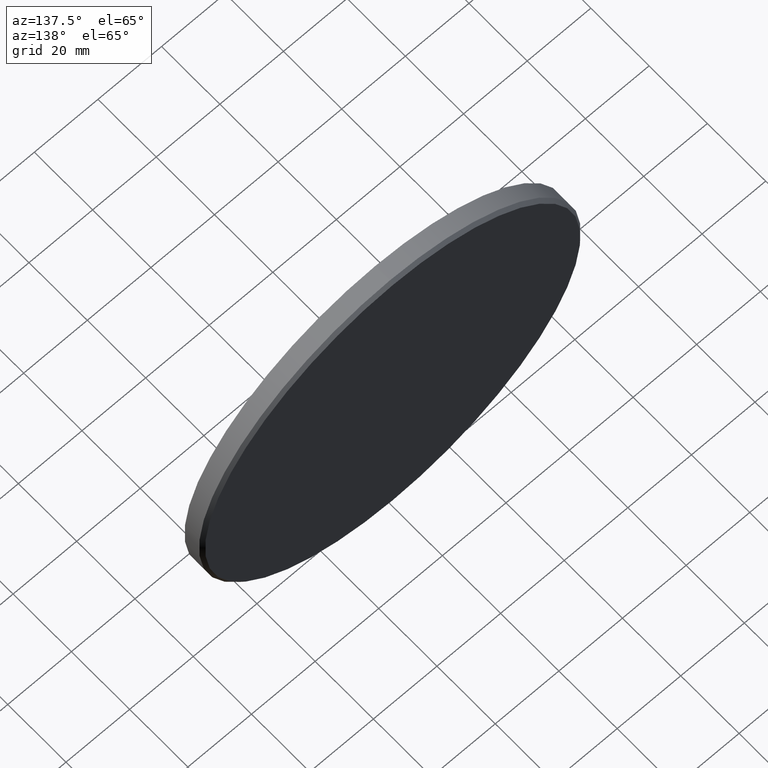
[diagram: clean part render]
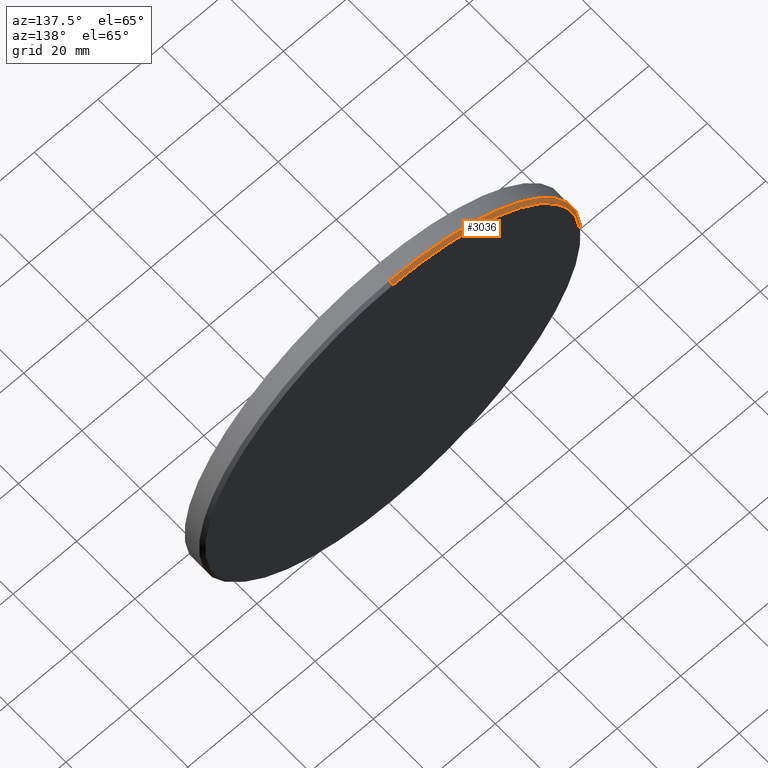
[diagram: same view with one face highlighted and labeled with its STEP entity id]
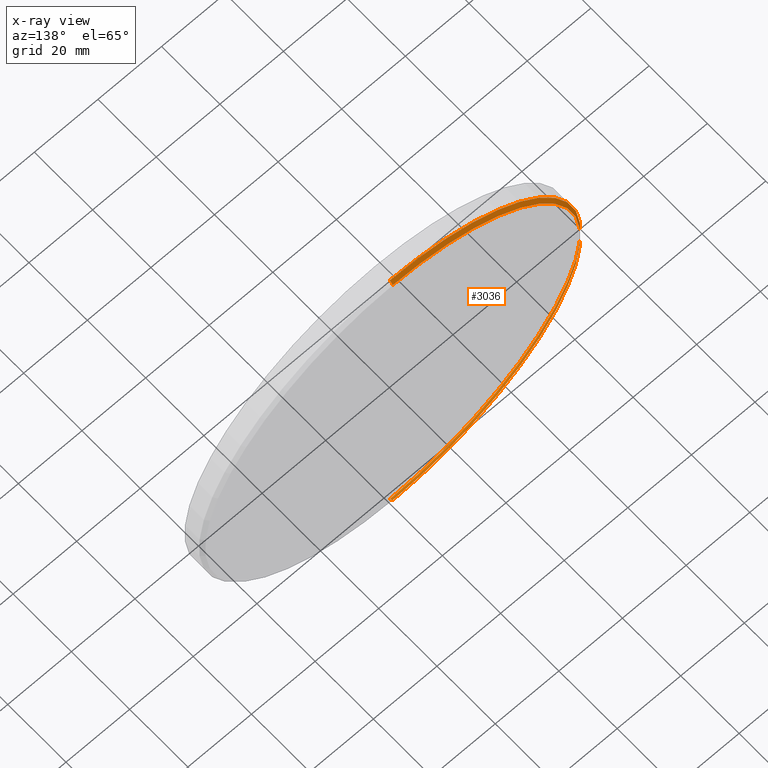
[diagram: x-ray of the same camera — body ghosted, the highlighted face saturated]
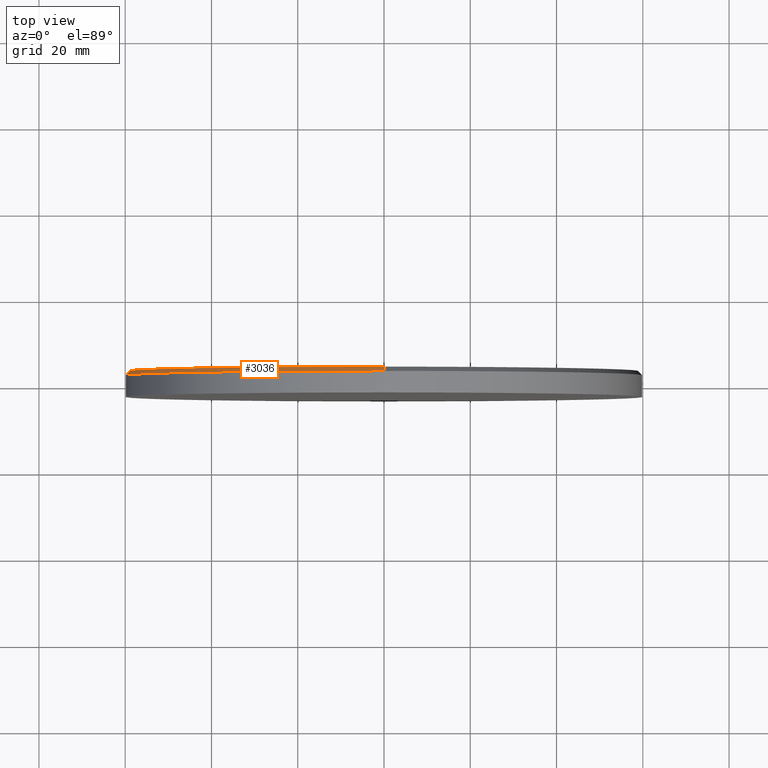
[diagram: same view with one face highlighted and labeled with its STEP entity id]
A machine part, auxiliary view. The second image highlights one B-rep face of the part: STEP entity #3036.
The next image is the same camera in x-ray: the body ghosted, the highlighted face saturated — about 0% of this face is hidden behind the body in this view.
A second angle (top view) of the same face is appended — the face is thin or edge-on in the first view.
In plain terms, the highlighted conical surface has half-angle 45 deg.
Its self-contained STEP definition (entity closure, byte-faithful):
#878 = CARTESIAN_POINT ( 'NONE',  ( 0.000000000000000000, 3.000000000000000000, -58.99999999999998579 ) ) ;
#1313 = EDGE_CURVE ( 'NONE', #13883, #8980, #1855, .T. ) ;
#1571 = CARTESIAN_POINT ( 'NONE',  ( 0.000000000000000000, 3.000000000000000000, -58.99999999999998579 ) ) ;
#1855 = LINE ( 'NONE', #8170, #5086 ) ;
#1865 = ORIENTED_EDGE ( 'NONE', *, *, #1313, .F. ) ;
#1889 = DIRECTION ( 'NONE',  ( 0.000000000000000000, -0.7071067811865524577, -0.7071067811865426878 ) ) ;
#2060 = EDGE_CURVE ( 'NONE', #5687, #4425, #11230, .T. ) ;
#2234 = AXIS2_PLACEMENT_3D ( 'NONE', #8735, #9847, #5050 ) ;
#2528 = CARTESIAN_POINT ( 'NONE',  ( 0.000000000000000000, 3.000000000000000000, 0.000000000000000000 ) ) ;
#2704 = AXIS2_PLACEMENT_3D ( 'NONE', #2528, #12466, #3713 ) ;
#2793 = EDGE_LOOP ( 'NONE', ( #1865, #2882, #8718, #7707 ) ) ;
#2882 = ORIENTED_EDGE ( 'NONE', *, *, #3405, .F. ) ;
#3036 = ADVANCED_FACE ( 'NONE', ( #5676 ), #8200, .T. ) ;
#3405 = EDGE_CURVE ( 'NONE', #5687, #13883, #10805, .T. ) ;
#3644 = DIRECTION ( 'NONE',  ( 0.000000000000000000, 0.000000000000000000, -1.000000000000000000 ) ) ;
#3713 = DIRECTION ( 'NONE',  ( 0.000000000000000000, 0.000000000000000000, 1.000000000000000000 ) ) ;
#4425 = VERTEX_POINT ( 'NONE', #8000 ) ;
#5050 = DIRECTION ( 'NONE',  ( 0.000000000000000000, 0.000000000000000000, 1.000000000000000000 ) ) ;
#5086 = VECTOR ( 'NONE', #10390, 1000.000000000000000 ) ;
#5676 = FACE_OUTER_BOUND ( 'NONE', #2793, .T. ) ;
#5687 = VERTEX_POINT ( 'NONE', #1571 ) ;
#6737 = CARTESIAN_POINT ( 'NONE',  ( 7.286648454926750781E-15, 3.000000000000000000, 58.99999999999998579 ) ) ;
#6946 = VECTOR ( 'NONE', #1889, 1000.000000000000000 ) ;
#7707 = ORIENTED_EDGE ( 'NONE', *, *, #12110, .F. ) ;
#8000 = CARTESIAN_POINT ( 'NONE',  ( 0.000000000000000000, 1.999999999999971356, -60.00000000000000000 ) ) ;
#8170 = CARTESIAN_POINT ( 'NONE',  ( 7.225416114969381630E-15, 3.000000000000000000, 58.99999999999998579 ) ) ;
#8200 = CONICAL_SURFACE ( 'NONE', #12936, 58.99999999999998579, 0.7853981633974415066 ) ;
#8718 = ORIENTED_EDGE ( 'NONE', *, *, #2060, .T. ) ;
#8735 = CARTESIAN_POINT ( 'NONE',  ( 0.000000000000000000, 1.999999999999971356, 0.000000000000000000 ) ) ;
#8980 = VERTEX_POINT ( 'NONE', #13529 ) ;
#9409 = CIRCLE ( 'NONE', #2234, 60.00000000000000000 ) ;
#9847 = DIRECTION ( 'NONE',  ( 0.000000000000000000, -1.000000000000000000, 0.000000000000000000 ) ) ;
#10219 = DIRECTION ( 'NONE',  ( 0.000000000000000000, -1.000000000000000000, 0.000000000000000000 ) ) ;
#10390 = DIRECTION ( 'NONE',  ( 8.659560562354874926E-17, -0.7071067811865524577, 0.7071067811865426878 ) ) ;
#10805 = CIRCLE ( 'NONE', #2704, 58.99999999999998579 ) ;
#11230 = LINE ( 'NONE', #878, #6946 ) ;
#12110 = EDGE_CURVE ( 'NONE', #8980, #4425, #9409, .T. ) ;
#12308 = CARTESIAN_POINT ( 'NONE',  ( 0.000000000000000000, 3.000000000000000000, 0.000000000000000000 ) ) ;
#12466 = DIRECTION ( 'NONE',  ( 0.000000000000000000, 1.000000000000000000, 0.000000000000000000 ) ) ;
#12936 = AXIS2_PLACEMENT_3D ( 'NONE', #12308, #10219, #3644 ) ;
#13529 = CARTESIAN_POINT ( 'NONE',  ( 7.347880794884118356E-15, 1.999999999999971356, 60.00000000000000000 ) ) ;
#13883 = VERTEX_POINT ( 'NONE', #6737 ) ;